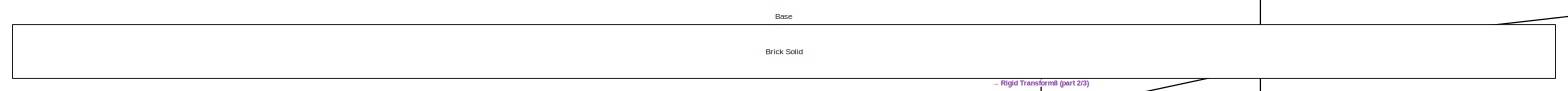
[diagram: root canvas - part 1/3, top center region]
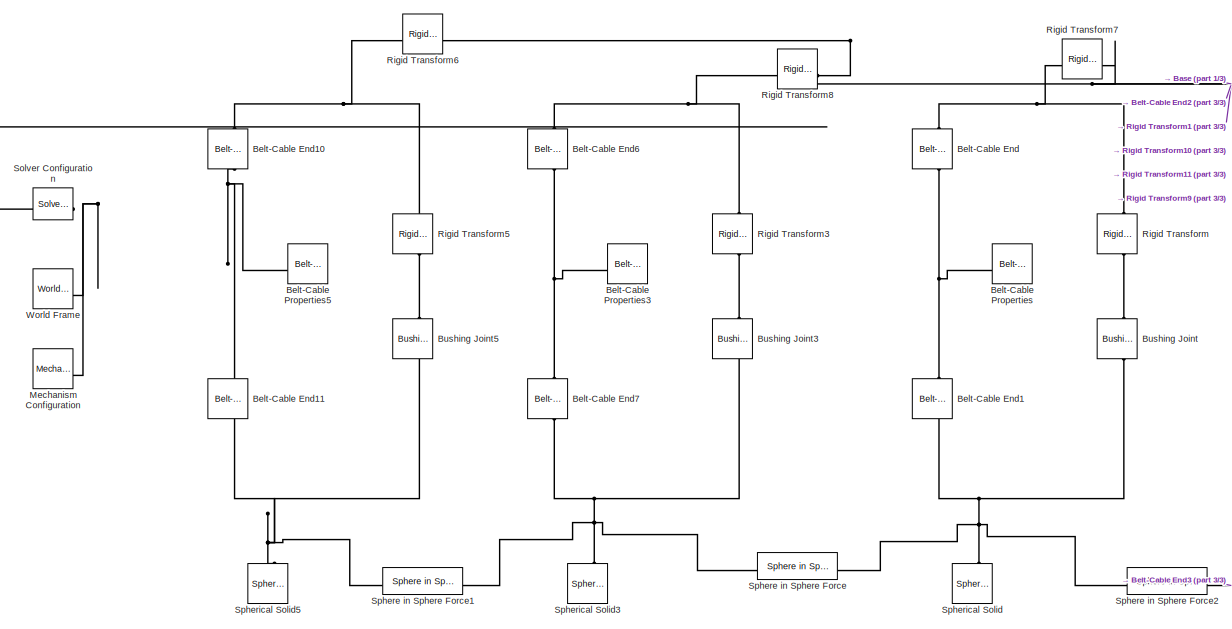
[diagram: root canvas - part 2/3, middle left region]
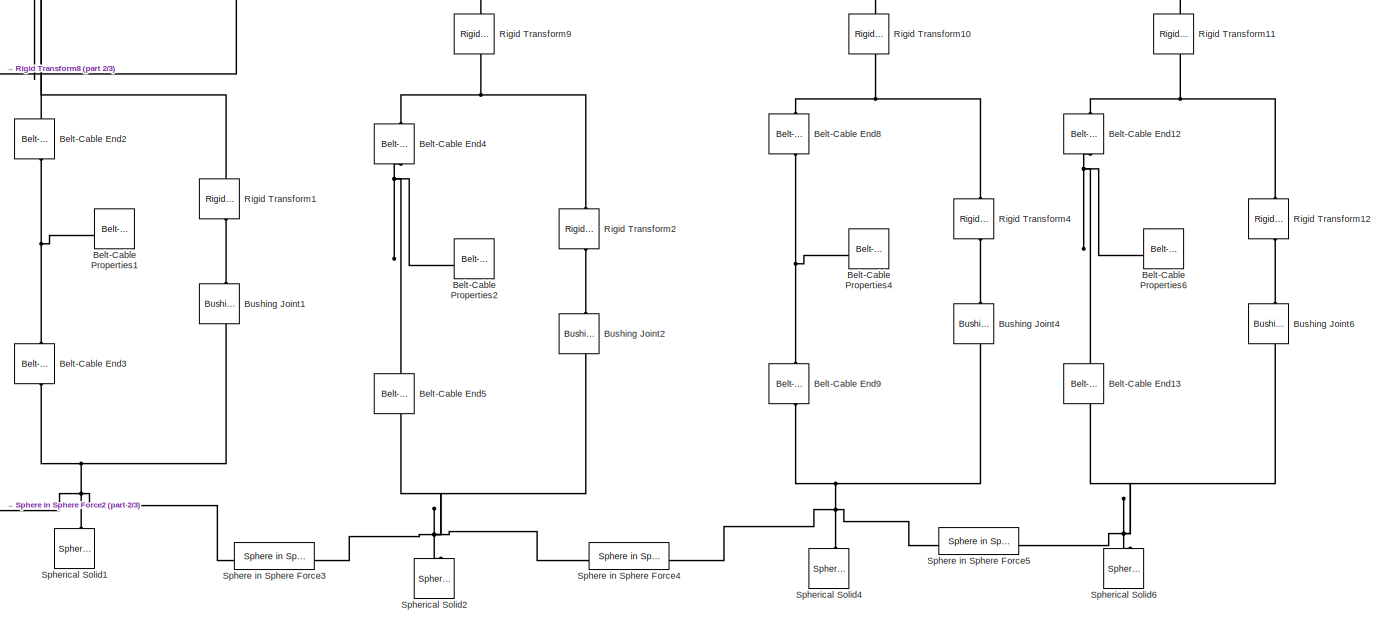
[diagram: root canvas - part 3/3, middle right region]
MODEL slx_8094321e8c00
KIND model
CONFIG AbsTol = 1e-3
CONFIG EnableMultiTasking = on
CONFIG FixedStep = auto
CONFIG MaxStep = auto
CONFIG MinStep = auto
CONFIG RelTol = 1e-3
CONFIG SampleTimeConstraint = Unconstrained
CONFIG SolverName = VariableStepAuto
CONFIG StartTime = 0.0
CONFIG StopTime = 10.0
BLOCK [Reference] Base   REF=sm_lib/Body Elements/Brick Solid
  SourceBlock = sm_lib/Body Elements/Brick Solid
  SourceType = Brick Solid
BLOCK [Reference] Belt-Cable End  REF=sm_lib/Belts and Cables/Belt-Cable End
  NameLocation = left
  SourceBlock = sm_lib/Belts and Cables/Belt-Cable End
  SourceType = Belt-Cable End
BLOCK [Reference] Belt-Cable End1  REF=sm_lib/Belts and Cables/Belt-Cable End
  NameLocation = right
  SourceBlock = sm_lib/Belts and Cables/Belt-Cable End
  SourceType = Belt-Cable End
BLOCK [Reference] Belt-Cable End10  REF=sm_lib/Belts and Cables/Belt-Cable End
  NameLocation = left
  SourceBlock = sm_lib/Belts and Cables/Belt-Cable End
  SourceType = Belt-Cable End
BLOCK [Reference] Belt-Cable End11  REF=sm_lib/Belts and Cables/Belt-Cable End
  NameLocation = right
  SourceBlock = sm_lib/Belts and Cables/Belt-Cable End
  SourceType = Belt-Cable End
BLOCK [Reference] Belt-Cable End12  REF=sm_lib/Belts and Cables/Belt-Cable End
  NameLocation = left
  SourceBlock = sm_lib/Belts and Cables/Belt-Cable End
  SourceType = Belt-Cable End
BLOCK [Reference] Belt-Cable End13  REF=sm_lib/Belts and Cables/Belt-Cable End
  NameLocation = right
  SourceBlock = sm_lib/Belts and Cables/Belt-Cable End
  SourceType = Belt-Cable End
BLOCK [Reference] Belt-Cable End2  REF=sm_lib/Belts and Cables/Belt-Cable End
  NameLocation = left
  SourceBlock = sm_lib/Belts and Cables/Belt-Cable End
  SourceType = Belt-Cable End
BLOCK [Reference] Belt-Cable End3  REF=sm_lib/Belts and Cables/Belt-Cable End
  NameLocation = right
  SourceBlock = sm_lib/Belts and Cables/Belt-Cable End
  SourceType = Belt-Cable End
BLOCK [Reference] Belt-Cable End4  REF=sm_lib/Belts and Cables/Belt-Cable End
  NameLocation = left
  SourceBlock = sm_lib/Belts and Cables/Belt-Cable End
  SourceType = Belt-Cable End
BLOCK [Reference] Belt-Cable End5  REF=sm_lib/Belts and Cables/Belt-Cable End
  NameLocation = right
  SourceBlock = sm_lib/Belts and Cables/Belt-Cable End
  SourceType = Belt-Cable End
BLOCK [Reference] Belt-Cable End6  REF=sm_lib/Belts and Cables/Belt-Cable End
  NameLocation = left
  SourceBlock = sm_lib/Belts and Cables/Belt-Cable End
  SourceType = Belt-Cable End
BLOCK [Reference] Belt-Cable End7  REF=sm_lib/Belts and Cables/Belt-Cable End
  NameLocation = right
  SourceBlock = sm_lib/Belts and Cables/Belt-Cable End
  SourceType = Belt-Cable End
BLOCK [Reference] Belt-Cable End8  REF=sm_lib/Belts and Cables/Belt-Cable End
  NameLocation = left
  SourceBlock = sm_lib/Belts and Cables/Belt-Cable End
  SourceType = Belt-Cable End
BLOCK [Reference] Belt-Cable End9  REF=sm_lib/Belts and Cables/Belt-Cable End
  NameLocation = right
  SourceBlock = sm_lib/Belts and Cables/Belt-Cable End
  SourceType = Belt-Cable End
BLOCK [Reference] Belt-Cable Properties  REF=sm_lib/Belts and Cables/Belt-Cable
Properties
  SourceBlock = sm_lib/Belts and Cables/Belt-Cable\nProperties
  SourceType = Belt-Cable\nProperties
BLOCK [Reference] Belt-Cable Properties1  REF=sm_lib/Belts and Cables/Belt-Cable
Properties
  SourceBlock = sm_lib/Belts and Cables/Belt-Cable\nProperties
  SourceType = Belt-Cable\nProperties
BLOCK [Reference] Belt-Cable Properties2  REF=sm_lib/Belts and Cables/Belt-Cable
Properties
  SourceBlock = sm_lib/Belts and Cables/Belt-Cable\nProperties
  SourceType = Belt-Cable\nProperties
BLOCK [Reference] Belt-Cable Properties3  REF=sm_lib/Belts and Cables/Belt-Cable
Properties
  SourceBlock = sm_lib/Belts and Cables/Belt-Cable\nProperties
  SourceType = Belt-Cable\nProperties
BLOCK [Reference] Belt-Cable Properties4  REF=sm_lib/Belts and Cables/Belt-Cable
Properties
  SourceBlock = sm_lib/Belts and Cables/Belt-Cable\nProperties
  SourceType = Belt-Cable\nProperties
BLOCK [Reference] Belt-Cable Properties5  REF=sm_lib/Belts and Cables/Belt-Cable
Properties
  SourceBlock = sm_lib/Belts and Cables/Belt-Cable\nProperties
  SourceType = Belt-Cable\nProperties
BLOCK [Reference] Belt-Cable Properties6  REF=sm_lib/Belts and Cables/Belt-Cable
Properties
  SourceBlock = sm_lib/Belts and Cables/Belt-Cable\nProperties
  SourceType = Belt-Cable\nProperties
BLOCK [Reference] Bushing Joint  REF=sm_lib/Joints/Bushing Joint
  NameLocation = left
  SourceBlock = sm_lib/Joints/Bushing Joint
  SourceType = Bushing Joint
BLOCK [Reference] Bushing Joint1  REF=sm_lib/Joints/Bushing Joint
  NameLocation = left
  SourceBlock = sm_lib/Joints/Bushing Joint
  SourceType = Bushing Joint
BLOCK [Reference] Bushing Joint2  REF=sm_lib/Joints/Bushing Joint
  NameLocation = left
  SourceBlock = sm_lib/Joints/Bushing Joint
  SourceType = Bushing Joint
BLOCK [Reference] Bushing Joint3  REF=sm_lib/Joints/Bushing Joint
  NameLocation = left
  SourceBlock = sm_lib/Joints/Bushing Joint
  SourceType = Bushing Joint
BLOCK [Reference] Bushing Joint4  REF=sm_lib/Joints/Bushing Joint
  NameLocation = left
  SourceBlock = sm_lib/Joints/Bushing Joint
  SourceType = Bushing Joint
BLOCK [Reference] Bushing Joint5  REF=sm_lib/Joints/Bushing Joint
  NameLocation = left
  SourceBlock = sm_lib/Joints/Bushing Joint
  SourceType = Bushing Joint
BLOCK [Reference] Bushing Joint6  REF=sm_lib/Joints/Bushing Joint
  NameLocation = left
  SourceBlock = sm_lib/Joints/Bushing Joint
  SourceType = Bushing Joint
BLOCK [Reference] Mechanism Configuration  REF=sm_lib/Utilities/Mechanism
Configuration
  SourceBlock = sm_lib/Utilities/Mechanism\nConfiguration
  SourceType = Mechanism\nConfiguration
BLOCK [Reference] Rigid Transform  REF=sm_lib/Frames and
Transforms/Rigid
Transform
  NameLocation = left
  SourceBlock = sm_lib/Frames and\nTransforms/Rigid\nTransform
  SourceType = Rigid\nTransform
BLOCK [Reference] Rigid Transform1  REF=sm_lib/Frames and
Transforms/Rigid
Transform
  NameLocation = left
  SourceBlock = sm_lib/Frames and\nTransforms/Rigid\nTransform
  SourceType = Rigid\nTransform
BLOCK [Reference] Rigid Transform10  REF=sm_lib/Frames and
Transforms/Rigid
Transform
  NameLocation = left
  SourceBlock = sm_lib/Frames and\nTransforms/Rigid\nTransform
  SourceType = Rigid\nTransform
BLOCK [Reference] Rigid Transform11  REF=sm_lib/Frames and
Transforms/Rigid
Transform
  NameLocation = left
  SourceBlock = sm_lib/Frames and\nTransforms/Rigid\nTransform
  SourceType = Rigid\nTransform
BLOCK [Reference] Rigid Transform12  REF=sm_lib/Frames and
Transforms/Rigid
Transform
  NameLocation = left
  SourceBlock = sm_lib/Frames and\nTransforms/Rigid\nTransform
  SourceType = Rigid\nTransform
BLOCK [Reference] Rigid Transform2  REF=sm_lib/Frames and
Transforms/Rigid
Transform
  NameLocation = left
  SourceBlock = sm_lib/Frames and\nTransforms/Rigid\nTransform
  SourceType = Rigid\nTransform
BLOCK [Reference] Rigid Transform3  REF=sm_lib/Frames and
Transforms/Rigid
Transform
  NameLocation = left
  SourceBlock = sm_lib/Frames and\nTransforms/Rigid\nTransform
  SourceType = Rigid\nTransform
BLOCK [Reference] Rigid Transform4  REF=sm_lib/Frames and
Transforms/Rigid
Transform
  NameLocation = left
  SourceBlock = sm_lib/Frames and\nTransforms/Rigid\nTransform
  SourceType = Rigid\nTransform
BLOCK [Reference] Rigid Transform5  REF=sm_lib/Frames and
Transforms/Rigid
Transform
  NameLocation = left
  SourceBlock = sm_lib/Frames and\nTransforms/Rigid\nTransform
  SourceType = Rigid\nTransform
BLOCK [Reference] Rigid Transform6  REF=sm_lib/Frames and
Transforms/Rigid
Transform
  NameLocation = top
  SourceBlock = sm_lib/Frames and\nTransforms/Rigid\nTransform
  SourceType = Rigid\nTransform
BLOCK [Reference] Rigid Transform7  REF=sm_lib/Frames and
Transforms/Rigid
Transform
  NameLocation = top
  SourceBlock = sm_lib/Frames and\nTransforms/Rigid\nTransform
  SourceType = Rigid\nTransform
BLOCK [Reference] Rigid Transform8  REF=sm_lib/Frames and
Transforms/Rigid
Transform
  NameLocation = top
  SourceBlock = sm_lib/Frames and\nTransforms/Rigid\nTransform
  SourceType = Rigid\nTransform
BLOCK [Reference] Rigid Transform9  REF=sm_lib/Frames and
Transforms/Rigid
Transform
  NameLocation = left
  SourceBlock = sm_lib/Frames and\nTransforms/Rigid\nTransform
  SourceType = Rigid\nTransform
BLOCK [Reference] Solver Configuration  REF=nesl_utility/Solver
Configuration
  SourceBlock = nesl_utility/Solver\nConfiguration
  SourceType = Solver\nConfiguration
BLOCK [Reference] Sphere in Sphere Force  REF=Contact_Forces_Lib/3D/Sphere in Sphere Force
  SourceBlock = Contact_Forces_Lib/3D/Sphere in Sphere Force
  SourceProductName = Simscape Multibody Contact Forces Library
  SourceType = Sphere in Sphere Force
BLOCK [Reference] Sphere in Sphere Force1  REF=Contact_Forces_Lib/3D/Sphere in Sphere Force
  SourceBlock = Contact_Forces_Lib/3D/Sphere in Sphere Force
  SourceProductName = Simscape Multibody Contact Forces Library
  SourceType = Sphere in Sphere Force
BLOCK [Reference] Sphere in Sphere Force2  REF=Contact_Forces_Lib/3D/Sphere in Sphere Force
  SourceBlock = Contact_Forces_Lib/3D/Sphere in Sphere Force
  SourceProductName = Simscape Multibody Contact Forces Library
  SourceType = Sphere in Sphere Force
BLOCK [Reference] Sphere in Sphere Force3  REF=Contact_Forces_Lib/3D/Sphere in Sphere Force
  SourceBlock = Contact_Forces_Lib/3D/Sphere in Sphere Force
  SourceProductName = Simscape Multibody Contact Forces Library
  SourceType = Sphere in Sphere Force
BLOCK [Reference] Sphere in Sphere Force4  REF=Contact_Forces_Lib/3D/Sphere in Sphere Force
  SourceBlock = Contact_Forces_Lib/3D/Sphere in Sphere Force
  SourceProductName = Simscape Multibody Contact Forces Library
  SourceType = Sphere in Sphere Force
BLOCK [Reference] Sphere in Sphere Force5  REF=Contact_Forces_Lib/3D/Sphere in Sphere Force
  SourceBlock = Contact_Forces_Lib/3D/Sphere in Sphere Force
  SourceProductName = Simscape Multibody Contact Forces Library
  SourceType = Sphere in Sphere Force
BLOCK [Reference] Spherical Solid  REF=sm_lib/Body Elements/Spherical Solid
  NameLocation = right
  SourceBlock = sm_lib/Body Elements/Spherical Solid
  SourceType = Spherical Solid
BLOCK [Reference] Spherical Solid1  REF=sm_lib/Body Elements/Spherical Solid
  NameLocation = right
  SourceBlock = sm_lib/Body Elements/Spherical Solid
  SourceType = Spherical Solid
BLOCK [Reference] Spherical Solid2  REF=sm_lib/Body Elements/Spherical Solid
  NameLocation = right
  SourceBlock = sm_lib/Body Elements/Spherical Solid
  SourceType = Spherical Solid
BLOCK [Reference] Spherical Solid3  REF=sm_lib/Body Elements/Spherical Solid
  NameLocation = right
  SourceBlock = sm_lib/Body Elements/Spherical Solid
  SourceType = Spherical Solid
BLOCK [Reference] Spherical Solid4  REF=sm_lib/Body Elements/Spherical Solid
  NameLocation = right
  SourceBlock = sm_lib/Body Elements/Spherical Solid
  SourceType = Spherical Solid
BLOCK [Reference] Spherical Solid5  REF=sm_lib/Body Elements/Spherical Solid
  NameLocation = right
  SourceBlock = sm_lib/Body Elements/Spherical Solid
  SourceType = Spherical Solid
BLOCK [Reference] Spherical Solid6  REF=sm_lib/Body Elements/Spherical Solid
  NameLocation = right
  SourceBlock = sm_lib/Body Elements/Spherical Solid
  SourceType = Spherical Solid
BLOCK [Reference] World Frame  REF=sm_lib/Frames and
Transforms/World Frame
  SourceBlock = sm_lib/Frames and\nTransforms/World Frame
  SourceType = World Frame
PNET net1: Base :LConn1 -- Belt-Cable End2:LConn1 -- Mechanism Configuration:RConn1 -- Rigid Transform10:LConn1 -- Rigid Transform11:LConn1 -- Rigid Transform1:LConn1 -- Rigid Transform6:LConn1 -- Rigid Transform7:LConn1 -- Rigid Transform8:LConn1 -- Rigid Transform9:LConn1 -- Solver Configuration:RConn1 -- World Frame:RConn1
PNET net2: Belt-Cable End10:LConn1 -- Rigid Transform5:LConn1 -- Rigid Transform6:RConn1
PNET net3: Belt-Cable End10:RConn1 -- Belt-Cable End11:RConn1 -- Belt-Cable Properties5:LConn1
PNET net4: Belt-Cable End11:LConn1 -- Bushing Joint5:RConn1 -- Sphere in Sphere Force1:RConn1 -- Spherical Solid5:RConn1
PNET net5: Belt-Cable End12:LConn1 -- Rigid Transform11:RConn1 -- Rigid Transform12:LConn1
PNET net6: Belt-Cable End12:RConn1 -- Belt-Cable End13:RConn1 -- Belt-Cable Properties6:LConn1
PNET net7: Belt-Cable End13:LConn1 -- Bushing Joint6:RConn1 -- Sphere in Sphere Force5:LConn1 -- Spherical Solid6:RConn1
PNET net8: Belt-Cable End1:LConn1 -- Bushing Joint:RConn1 -- Sphere in Sphere Force2:RConn1 -- Sphere in Sphere Force:LConn1 -- Spherical Solid:RConn1
PNET net9: Belt-Cable End1:RConn1 -- Belt-Cable End:RConn1 -- Belt-Cable Properties:LConn1
PNET net10: Belt-Cable End2:RConn1 -- Belt-Cable End3:RConn1 -- Belt-Cable Properties1:LConn1
PNET net11: Belt-Cable End3:LConn1 -- Bushing Joint1:RConn1 -- Sphere in Sphere Force2:LConn1 -- Sphere in Sphere Force3:RConn1 -- Spherical Solid1:RConn1
PNET net12: Belt-Cable End4:LConn1 -- Rigid Transform2:LConn1 -- Rigid Transform9:RConn1
PNET net13: Belt-Cable End4:RConn1 -- Belt-Cable End5:RConn1 -- Belt-Cable Properties2:LConn1
PNET net14: Belt-Cable End5:LConn1 -- Bushing Joint2:RConn1 -- Sphere in Sphere Force3:LConn1 -- Sphere in Sphere Force4:RConn1 -- Spherical Solid2:RConn1
PNET net15: Belt-Cable End6:LConn1 -- Rigid Transform3:LConn1 -- Rigid Transform8:RConn1
PNET net16: Belt-Cable End6:RConn1 -- Belt-Cable End7:RConn1 -- Belt-Cable Properties3:LConn1
PNET net17: Belt-Cable End7:LConn1 -- Bushing Joint3:RConn1 -- Sphere in Sphere Force1:LConn1 -- Sphere in Sphere Force:RConn1 -- Spherical Solid3:RConn1
PNET net18: Belt-Cable End8:LConn1 -- Rigid Transform10:RConn1 -- Rigid Transform4:LConn1
PNET net19: Belt-Cable End8:RConn1 -- Belt-Cable End9:RConn1 -- Belt-Cable Properties4:LConn1
PNET net20: Belt-Cable End9:LConn1 -- Bushing Joint4:RConn1 -- Sphere in Sphere Force4:LConn1 -- Sphere in Sphere Force5:RConn1 -- Spherical Solid4:RConn1
PNET net21: Belt-Cable End:LConn1 -- Rigid Transform7:RConn1 -- Rigid Transform:LConn1
PLINE Bushing Joint1:LConn1 -- Rigid Transform1:RConn1
PLINE Bushing Joint2:LConn1 -- Rigid Transform2:RConn1
PLINE Bushing Joint3:LConn1 -- Rigid Transform3:RConn1
PLINE Bushing Joint4:LConn1 -- Rigid Transform4:RConn1
PLINE Bushing Joint5:LConn1 -- Rigid Transform5:RConn1
PLINE Bushing Joint6:LConn1 -- Rigid Transform12:RConn1
PLINE Bushing Joint:LConn1 -- Rigid Transform:RConn1
note: PNET lines group multi-terminal physical nets as a canonical sorted terminal list (undirected conserving connections); 2-terminal nets keep the pairwise PLINE form
